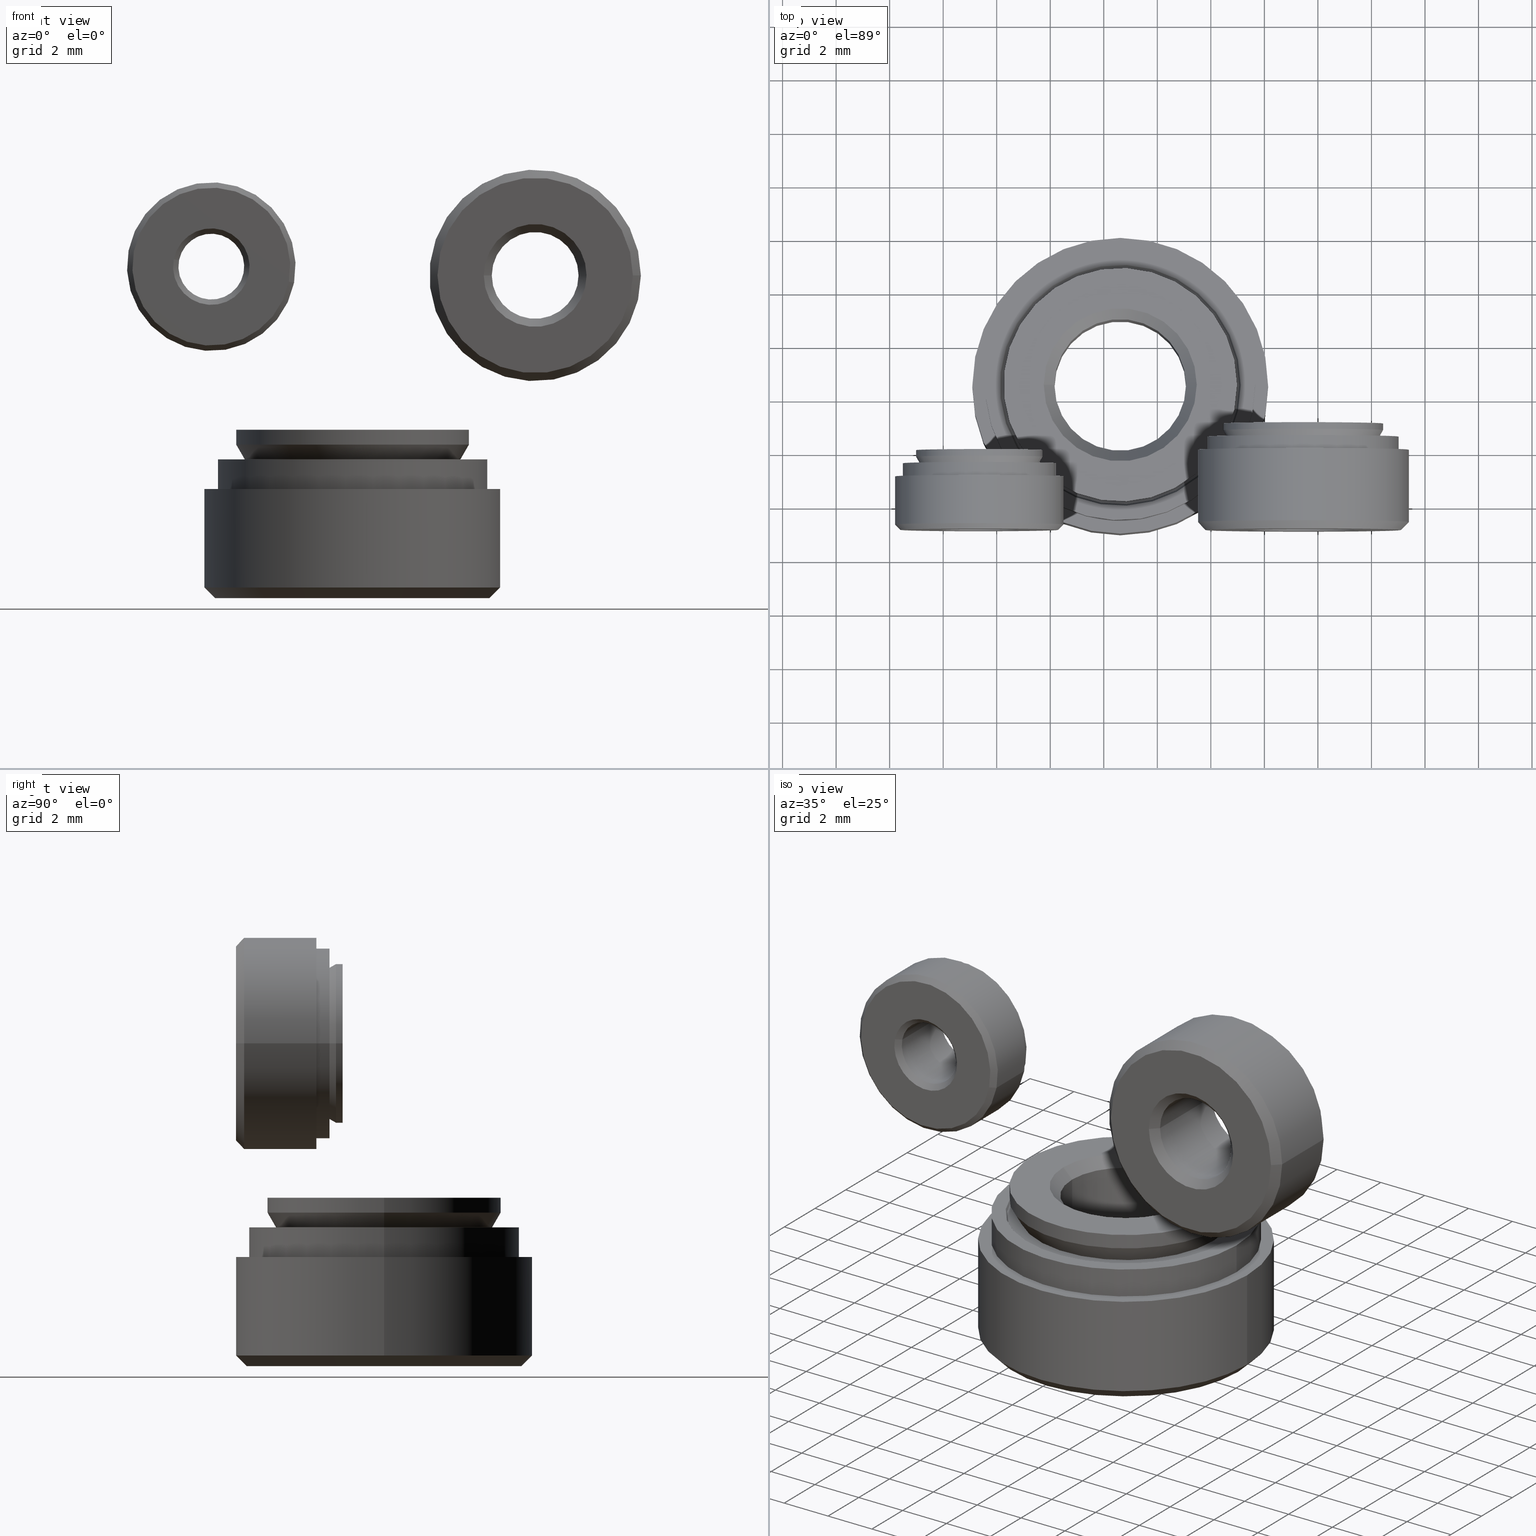
[diagram: canonical four-view strip — front | top / right | iso, engineering-drawing reading convention]
A machine part, canonical four-view strip (front | top / right | iso — engineering-drawing reading convention). The complete STEP part file that produces these views, byte-faithful:
ISO-10303-21;
HEADER;
/* Generated by software containing ST-Developer
 * from STEP Tools, Inc. (www.steptools.com) 
 */

FILE_DESCRIPTION(
/* description */ (''),
/* implementation_level */ '2;1');

FILE_NAME(
/* name */ '\\\\SYNOLOGYNAS\\web\\db2\\CCN_M\\\X2\B3C4BA74\X0\\\DR_CCN
_M.stp',
/* time_stamp */ '2023-05-31T11:38:22+09:00',
/* author */ ('user'),
/* organization */ (''),
/* preprocessor_version */ 'ST-DEVELOPER v15.6',
/* originating_system */ 'Autodesk Inventor 2015',
/* authorisation */ '');

FILE_SCHEMA (('AUTOMOTIVE_DESIGN { 1 0 10303 214 3 1 1 }'));
ENDSEC;

DATA;
#10=MECHANICAL_DESIGN_GEOMETRIC_PRESENTATION_REPRESENTATION('',(#40,#39,
#41,#42,#43,#37,#36,#35,#38),#924);
#11=ITEM_DEFINED_TRANSFORMATION($,$,#509,#597);
#12=ITEM_DEFINED_TRANSFORMATION($,$,#538,#598);
#13=ITEM_DEFINED_TRANSFORMATION($,$,#567,#599);
#14=(
REPRESENTATION_RELATIONSHIP($,$,#939,#942)
REPRESENTATION_RELATIONSHIP_WITH_TRANSFORMATION(#11)
SHAPE_REPRESENTATION_RELATIONSHIP()
);
#15=(
REPRESENTATION_RELATIONSHIP($,$,#940,#942)
REPRESENTATION_RELATIONSHIP_WITH_TRANSFORMATION(#12)
SHAPE_REPRESENTATION_RELATIONSHIP()
);
#16=(
REPRESENTATION_RELATIONSHIP($,$,#941,#942)
REPRESENTATION_RELATIONSHIP_WITH_TRANSFORMATION(#13)
SHAPE_REPRESENTATION_RELATIONSHIP()
);
#17=CONTEXT_DEPENDENT_SHAPE_REPRESENTATION(#14,#936);
#18=CONTEXT_DEPENDENT_SHAPE_REPRESENTATION(#15,#937);
#19=CONTEXT_DEPENDENT_SHAPE_REPRESENTATION(#16,#938);
#20=NEXT_ASSEMBLY_USAGE_OCCURRENCE('CCN-M6-2:1',$,$,#947,#944,$);
#21=NEXT_ASSEMBLY_USAGE_OCCURRENCE('CCN-M3-1:1',$,$,#947,#945,$);
#22=NEXT_ASSEMBLY_USAGE_OCCURRENCE('CCN-M4-1:1',$,$,#947,#946,$);
#23=DIMENSIONAL_EXPONENTS(0.,0.,0.,0.,0.,0.,0.);
#24=(
CONVERSION_BASED_UNIT('degree',#25)
NAMED_UNIT(#23)
PLANE_ANGLE_UNIT()
);
#25=PLANE_ANGLE_MEASURE_WITH_UNIT(PLANE_ANGLE_MEASURE(0.01745329252),#927);
#26=SHAPE_REPRESENTATION_RELATIONSHIP('SRR','None',#939,#29);
#27=SHAPE_REPRESENTATION_RELATIONSHIP('SRR','None',#940,#30);
#28=SHAPE_REPRESENTATION_RELATIONSHIP('SRR','None',#941,#31);
#29=ADVANCED_BREP_SHAPE_REPRESENTATION($,(#32),#920);
#30=ADVANCED_BREP_SHAPE_REPRESENTATION($,(#33),#921);
#31=ADVANCED_BREP_SHAPE_REPRESENTATION($,(#34),#922);
#32=MANIFOLD_SOLID_BREP('Solid1',#506);
#33=MANIFOLD_SOLID_BREP('Solid1',#507);
#34=MANIFOLD_SOLID_BREP('Solid1',#508);
#35=STYLED_ITEM('',(#965),#474);
#36=STYLED_ITEM('',(#965),#476);
#37=STYLED_ITEM('',(#964),#32);
#38=STYLED_ITEM('',(#967),#488);
#39=STYLED_ITEM('',(#967),#490);
#40=STYLED_ITEM('',(#966),#33);
#41=STYLED_ITEM('',(#969),#502);
#42=STYLED_ITEM('',(#969),#504);
#43=STYLED_ITEM('',(#968),#34);
#44=PLANE('',#515);
#45=PLANE('',#520);
#46=PLANE('',#529);
#47=PLANE('',#533);
#48=PLANE('',#537);
#49=PLANE('',#544);
#50=PLANE('',#549);
#51=PLANE('',#558);
#52=PLANE('',#562);
#53=PLANE('',#566);
#54=PLANE('',#573);
#55=PLANE('',#578);
#56=PLANE('',#587);
#57=PLANE('',#591);
#58=PLANE('',#595);
#59=CYLINDRICAL_SURFACE('',#513,2.4585);
#60=CYLINDRICAL_SURFACE('',#522,5.525);
#61=CYLINDRICAL_SURFACE('',#525,4.36);
#62=CYLINDRICAL_SURFACE('',#535,5.0425);
#63=CYLINDRICAL_SURFACE('',#542,1.2295);
#64=CYLINDRICAL_SURFACE('',#551,3.15);
#65=CYLINDRICAL_SURFACE('',#554,2.365);
#66=CYLINDRICAL_SURFACE('',#564,2.8575);
#67=CYLINDRICAL_SURFACE('',#571,1.621);
#68=CYLINDRICAL_SURFACE('',#580,3.95);
#69=CYLINDRICAL_SURFACE('',#583,2.985);
#70=CYLINDRICAL_SURFACE('',#593,3.5675);
#71=FACE_BOUND('',#156,.T.);
#72=FACE_BOUND('',#158,.T.);
#73=FACE_BOUND('',#160,.T.);
#74=FACE_BOUND('',#162,.T.);
#75=FACE_BOUND('',#164,.T.);
#76=FACE_BOUND('',#166,.T.);
#77=FACE_BOUND('',#168,.T.);
#78=FACE_BOUND('',#170,.T.);
#79=FACE_BOUND('',#172,.T.);
#80=FACE_BOUND('',#174,.T.);
#81=FACE_BOUND('',#176,.T.);
#82=FACE_BOUND('',#178,.T.);
#83=FACE_BOUND('',#180,.T.);
#84=FACE_BOUND('',#182,.T.);
#85=FACE_BOUND('',#184,.T.);
#86=FACE_BOUND('',#186,.T.);
#87=FACE_BOUND('',#188,.T.);
#88=FACE_BOUND('',#190,.T.);
#89=FACE_BOUND('',#192,.T.);
#90=FACE_BOUND('',#194,.T.);
#91=FACE_BOUND('',#196,.T.);
#92=FACE_BOUND('',#198,.T.);
#93=FACE_BOUND('',#200,.T.);
#94=FACE_BOUND('',#202,.T.);
#95=FACE_BOUND('',#204,.T.);
#96=FACE_BOUND('',#206,.T.);
#97=FACE_BOUND('',#208,.T.);
#98=FACE_BOUND('',#210,.T.);
#99=FACE_BOUND('',#212,.T.);
#100=FACE_BOUND('',#214,.T.);
#101=FACE_BOUND('',#216,.T.);
#102=FACE_BOUND('',#218,.T.);
#103=FACE_BOUND('',#220,.T.);
#104=FACE_BOUND('',#222,.T.);
#105=FACE_BOUND('',#224,.T.);
#106=FACE_BOUND('',#226,.T.);
#107=FACE_BOUND('',#228,.T.);
#108=FACE_BOUND('',#230,.T.);
#109=FACE_BOUND('',#232,.T.);
#110=FACE_BOUND('',#234,.T.);
#111=FACE_BOUND('',#236,.T.);
#112=FACE_BOUND('',#238,.T.);
#113=FACE_OUTER_BOUND('',#155,.T.);
#114=FACE_OUTER_BOUND('',#157,.T.);
#115=FACE_OUTER_BOUND('',#159,.T.);
#116=FACE_OUTER_BOUND('',#161,.T.);
#117=FACE_OUTER_BOUND('',#163,.T.);
#118=FACE_OUTER_BOUND('',#165,.T.);
#119=FACE_OUTER_BOUND('',#167,.T.);
#120=FACE_OUTER_BOUND('',#169,.T.);
#121=FACE_OUTER_BOUND('',#171,.T.);
#122=FACE_OUTER_BOUND('',#173,.T.);
#123=FACE_OUTER_BOUND('',#175,.T.);
#124=FACE_OUTER_BOUND('',#177,.T.);
#125=FACE_OUTER_BOUND('',#179,.T.);
#126=FACE_OUTER_BOUND('',#181,.T.);
#127=FACE_OUTER_BOUND('',#183,.T.);
#128=FACE_OUTER_BOUND('',#185,.T.);
#129=FACE_OUTER_BOUND('',#187,.T.);
#130=FACE_OUTER_BOUND('',#189,.T.);
#131=FACE_OUTER_BOUND('',#191,.T.);
#132=FACE_OUTER_BOUND('',#193,.T.);
#133=FACE_OUTER_BOUND('',#195,.T.);
#134=FACE_OUTER_BOUND('',#197,.T.);
#135=FACE_OUTER_BOUND('',#199,.T.);
#136=FACE_OUTER_BOUND('',#201,.T.);
#137=FACE_OUTER_BOUND('',#203,.T.);
#138=FACE_OUTER_BOUND('',#205,.T.);
#139=FACE_OUTER_BOUND('',#207,.T.);
#140=FACE_OUTER_BOUND('',#209,.T.);
#141=FACE_OUTER_BOUND('',#211,.T.);
#142=FACE_OUTER_BOUND('',#213,.T.);
#143=FACE_OUTER_BOUND('',#215,.T.);
#144=FACE_OUTER_BOUND('',#217,.T.);
#145=FACE_OUTER_BOUND('',#219,.T.);
#146=FACE_OUTER_BOUND('',#221,.T.);
#147=FACE_OUTER_BOUND('',#223,.T.);
#148=FACE_OUTER_BOUND('',#225,.T.);
#149=FACE_OUTER_BOUND('',#227,.T.);
#150=FACE_OUTER_BOUND('',#229,.T.);
#151=FACE_OUTER_BOUND('',#231,.T.);
#152=FACE_OUTER_BOUND('',#233,.T.);
#153=FACE_OUTER_BOUND('',#235,.T.);
#154=FACE_OUTER_BOUND('',#237,.T.);
#155=EDGE_LOOP('',(#365));
#156=EDGE_LOOP('',(#366));
#157=EDGE_LOOP('',(#367));
#158=EDGE_LOOP('',(#368));
#159=EDGE_LOOP('',(#369));
#160=EDGE_LOOP('',(#370));
#161=EDGE_LOOP('',(#371));
#162=EDGE_LOOP('',(#372));
#163=EDGE_LOOP('',(#373));
#164=EDGE_LOOP('',(#374));
#165=EDGE_LOOP('',(#375));
#166=EDGE_LOOP('',(#376));
#167=EDGE_LOOP('',(#377));
#168=EDGE_LOOP('',(#378));
#169=EDGE_LOOP('',(#379));
#170=EDGE_LOOP('',(#380));
#171=EDGE_LOOP('',(#381));
#172=EDGE_LOOP('',(#382));
#173=EDGE_LOOP('',(#383));
#174=EDGE_LOOP('',(#384));
#175=EDGE_LOOP('',(#385));
#176=EDGE_LOOP('',(#386));
#177=EDGE_LOOP('',(#387));
#178=EDGE_LOOP('',(#388));
#179=EDGE_LOOP('',(#389));
#180=EDGE_LOOP('',(#390));
#181=EDGE_LOOP('',(#391));
#182=EDGE_LOOP('',(#392));
#183=EDGE_LOOP('',(#393));
#184=EDGE_LOOP('',(#394));
#185=EDGE_LOOP('',(#395));
#186=EDGE_LOOP('',(#396));
#187=EDGE_LOOP('',(#397));
#188=EDGE_LOOP('',(#398));
#189=EDGE_LOOP('',(#399));
#190=EDGE_LOOP('',(#400));
#191=EDGE_LOOP('',(#401));
#192=EDGE_LOOP('',(#402));
#193=EDGE_LOOP('',(#403));
#194=EDGE_LOOP('',(#404));
#195=EDGE_LOOP('',(#405));
#196=EDGE_LOOP('',(#406));
#197=EDGE_LOOP('',(#407));
#198=EDGE_LOOP('',(#408));
#199=EDGE_LOOP('',(#409));
#200=EDGE_LOOP('',(#410));
#201=EDGE_LOOP('',(#411));
#202=EDGE_LOOP('',(#412));
#203=EDGE_LOOP('',(#413));
#204=EDGE_LOOP('',(#414));
#205=EDGE_LOOP('',(#415));
#206=EDGE_LOOP('',(#416));
#207=EDGE_LOOP('',(#417));
#208=EDGE_LOOP('',(#418));
#209=EDGE_LOOP('',(#419));
#210=EDGE_LOOP('',(#420));
#211=EDGE_LOOP('',(#421));
#212=EDGE_LOOP('',(#422));
#213=EDGE_LOOP('',(#423));
#214=EDGE_LOOP('',(#424));
#215=EDGE_LOOP('',(#425));
#216=EDGE_LOOP('',(#426));
#217=EDGE_LOOP('',(#427));
#218=EDGE_LOOP('',(#428));
#219=EDGE_LOOP('',(#429));
#220=EDGE_LOOP('',(#430));
#221=EDGE_LOOP('',(#431));
#222=EDGE_LOOP('',(#432));
#223=EDGE_LOOP('',(#433));
#224=EDGE_LOOP('',(#434));
#225=EDGE_LOOP('',(#435));
#226=EDGE_LOOP('',(#436));
#227=EDGE_LOOP('',(#437));
#228=EDGE_LOOP('',(#438));
#229=EDGE_LOOP('',(#439));
#230=EDGE_LOOP('',(#440));
#231=EDGE_LOOP('',(#441));
#232=EDGE_LOOP('',(#442));
#233=EDGE_LOOP('',(#443));
#234=EDGE_LOOP('',(#444));
#235=EDGE_LOOP('',(#445));
#236=EDGE_LOOP('',(#446));
#237=EDGE_LOOP('',(#447));
#238=EDGE_LOOP('',(#448));
#239=CIRCLE('',#511,2.4585);
#240=CIRCLE('',#512,2.8585);
#241=CIRCLE('',#514,2.4585);
#242=CIRCLE('',#516,4.36);
#243=CIRCLE('',#518,5.525);
#244=CIRCLE('',#519,5.125);
#245=CIRCLE('',#521,2.8585);
#246=CIRCLE('',#523,5.525);
#247=CIRCLE('',#526,4.36);
#248=CIRCLE('',#528,3.98327894935377);
#249=CIRCLE('',#530,4.44515916470547);
#250=CIRCLE('',#532,4.50289419162443);
#251=CIRCLE('',#534,5.0425);
#252=CIRCLE('',#536,5.0425);
#253=CIRCLE('',#540,1.2295);
#254=CIRCLE('',#541,1.4295);
#255=CIRCLE('',#543,1.2295);
#256=CIRCLE('',#545,2.365);
#257=CIRCLE('',#547,3.15);
#258=CIRCLE('',#548,2.95);
#259=CIRCLE('',#550,1.4295);
#260=CIRCLE('',#552,3.15);
#261=CIRCLE('',#555,2.365);
#262=CIRCLE('',#557,2.16581415712958);
#263=CIRCLE('',#559,2.62769437248128);
#264=CIRCLE('',#561,2.68542939940024);
#265=CIRCLE('',#563,2.8575);
#266=CIRCLE('',#565,2.8575);
#267=CIRCLE('',#569,1.621);
#268=CIRCLE('',#570,1.921);
#269=CIRCLE('',#572,1.621);
#270=CIRCLE('',#574,2.985);
#271=CIRCLE('',#576,3.95);
#272=CIRCLE('',#577,3.65);
#273=CIRCLE('',#579,1.921);
#274=CIRCLE('',#581,3.95);
#275=CIRCLE('',#584,2.985);
#276=CIRCLE('',#586,2.78581415712958);
#277=CIRCLE('',#588,3.24769437248128);
#278=CIRCLE('',#590,3.30542939940024);
#279=CIRCLE('',#592,3.5675);
#280=CIRCLE('',#594,3.5675);
#281=VERTEX_POINT('',#784);
#282=VERTEX_POINT('',#786);
#283=VERTEX_POINT('',#789);
#284=VERTEX_POINT('',#792);
#285=VERTEX_POINT('',#795);
#286=VERTEX_POINT('',#797);
#287=VERTEX_POINT('',#800);
#288=VERTEX_POINT('',#803);
#289=VERTEX_POINT('',#807);
#290=VERTEX_POINT('',#810);
#291=VERTEX_POINT('',#813);
#292=VERTEX_POINT('',#816);
#293=VERTEX_POINT('',#819);
#294=VERTEX_POINT('',#822);
#295=VERTEX_POINT('',#827);
#296=VERTEX_POINT('',#829);
#297=VERTEX_POINT('',#832);
#298=VERTEX_POINT('',#835);
#299=VERTEX_POINT('',#838);
#300=VERTEX_POINT('',#840);
#301=VERTEX_POINT('',#843);
#302=VERTEX_POINT('',#846);
#303=VERTEX_POINT('',#850);
#304=VERTEX_POINT('',#853);
#305=VERTEX_POINT('',#856);
#306=VERTEX_POINT('',#859);
#307=VERTEX_POINT('',#862);
#308=VERTEX_POINT('',#865);
#309=VERTEX_POINT('',#870);
#310=VERTEX_POINT('',#872);
#311=VERTEX_POINT('',#875);
#312=VERTEX_POINT('',#878);
#313=VERTEX_POINT('',#881);
#314=VERTEX_POINT('',#883);
#315=VERTEX_POINT('',#886);
#316=VERTEX_POINT('',#889);
#317=VERTEX_POINT('',#893);
#318=VERTEX_POINT('',#896);
#319=VERTEX_POINT('',#899);
#320=VERTEX_POINT('',#902);
#321=VERTEX_POINT('',#905);
#322=VERTEX_POINT('',#908);
#323=EDGE_CURVE('',#281,#281,#239,.T.);
#324=EDGE_CURVE('',#282,#282,#240,.T.);
#325=EDGE_CURVE('',#283,#283,#241,.T.);
#326=EDGE_CURVE('',#284,#284,#242,.T.);
#327=EDGE_CURVE('',#285,#285,#243,.T.);
#328=EDGE_CURVE('',#286,#286,#244,.T.);
#329=EDGE_CURVE('',#287,#287,#245,.T.);
#330=EDGE_CURVE('',#288,#288,#246,.T.);
#331=EDGE_CURVE('',#289,#289,#247,.T.);
#332=EDGE_CURVE('',#290,#290,#248,.T.);
#333=EDGE_CURVE('',#291,#291,#249,.T.);
#334=EDGE_CURVE('',#292,#292,#250,.T.);
#335=EDGE_CURVE('',#293,#293,#251,.T.);
#336=EDGE_CURVE('',#294,#294,#252,.T.);
#337=EDGE_CURVE('',#295,#295,#253,.T.);
#338=EDGE_CURVE('',#296,#296,#254,.T.);
#339=EDGE_CURVE('',#297,#297,#255,.T.);
#340=EDGE_CURVE('',#298,#298,#256,.T.);
#341=EDGE_CURVE('',#299,#299,#257,.T.);
#342=EDGE_CURVE('',#300,#300,#258,.T.);
#343=EDGE_CURVE('',#301,#301,#259,.T.);
#344=EDGE_CURVE('',#302,#302,#260,.T.);
#345=EDGE_CURVE('',#303,#303,#261,.T.);
#346=EDGE_CURVE('',#304,#304,#262,.T.);
#347=EDGE_CURVE('',#305,#305,#263,.T.);
#348=EDGE_CURVE('',#306,#306,#264,.T.);
#349=EDGE_CURVE('',#307,#307,#265,.T.);
#350=EDGE_CURVE('',#308,#308,#266,.T.);
#351=EDGE_CURVE('',#309,#309,#267,.T.);
#352=EDGE_CURVE('',#310,#310,#268,.T.);
#353=EDGE_CURVE('',#311,#311,#269,.T.);
#354=EDGE_CURVE('',#312,#312,#270,.T.);
#355=EDGE_CURVE('',#313,#313,#271,.T.);
#356=EDGE_CURVE('',#314,#314,#272,.T.);
#357=EDGE_CURVE('',#315,#315,#273,.T.);
#358=EDGE_CURVE('',#316,#316,#274,.T.);
#359=EDGE_CURVE('',#317,#317,#275,.T.);
#360=EDGE_CURVE('',#318,#318,#276,.T.);
#361=EDGE_CURVE('',#319,#319,#277,.T.);
#362=EDGE_CURVE('',#320,#320,#278,.T.);
#363=EDGE_CURVE('',#321,#321,#279,.T.);
#364=EDGE_CURVE('',#322,#322,#280,.T.);
#365=ORIENTED_EDGE('',*,*,#323,.T.);
#366=ORIENTED_EDGE('',*,*,#324,.T.);
#367=ORIENTED_EDGE('',*,*,#325,.F.);
#368=ORIENTED_EDGE('',*,*,#323,.F.);
#369=ORIENTED_EDGE('',*,*,#326,.F.);
#370=ORIENTED_EDGE('',*,*,#324,.F.);
#371=ORIENTED_EDGE('',*,*,#327,.T.);
#372=ORIENTED_EDGE('',*,*,#328,.T.);
#373=ORIENTED_EDGE('',*,*,#328,.F.);
#374=ORIENTED_EDGE('',*,*,#329,.F.);
#375=ORIENTED_EDGE('',*,*,#330,.T.);
#376=ORIENTED_EDGE('',*,*,#327,.F.);
#377=ORIENTED_EDGE('',*,*,#325,.T.);
#378=ORIENTED_EDGE('',*,*,#329,.T.);
#379=ORIENTED_EDGE('',*,*,#326,.T.);
#380=ORIENTED_EDGE('',*,*,#331,.F.);
#381=ORIENTED_EDGE('',*,*,#331,.T.);
#382=ORIENTED_EDGE('',*,*,#332,.F.);
#383=ORIENTED_EDGE('',*,*,#333,.F.);
#384=ORIENTED_EDGE('',*,*,#332,.T.);
#385=ORIENTED_EDGE('',*,*,#334,.F.);
#386=ORIENTED_EDGE('',*,*,#333,.T.);
#387=ORIENTED_EDGE('',*,*,#335,.F.);
#388=ORIENTED_EDGE('',*,*,#334,.T.);
#389=ORIENTED_EDGE('',*,*,#335,.T.);
#390=ORIENTED_EDGE('',*,*,#336,.F.);
#391=ORIENTED_EDGE('',*,*,#330,.F.);
#392=ORIENTED_EDGE('',*,*,#336,.T.);
#393=ORIENTED_EDGE('',*,*,#337,.T.);
#394=ORIENTED_EDGE('',*,*,#338,.T.);
#395=ORIENTED_EDGE('',*,*,#339,.F.);
#396=ORIENTED_EDGE('',*,*,#337,.F.);
#397=ORIENTED_EDGE('',*,*,#340,.F.);
#398=ORIENTED_EDGE('',*,*,#338,.F.);
#399=ORIENTED_EDGE('',*,*,#341,.T.);
#400=ORIENTED_EDGE('',*,*,#342,.T.);
#401=ORIENTED_EDGE('',*,*,#342,.F.);
#402=ORIENTED_EDGE('',*,*,#343,.F.);
#403=ORIENTED_EDGE('',*,*,#344,.T.);
#404=ORIENTED_EDGE('',*,*,#341,.F.);
#405=ORIENTED_EDGE('',*,*,#339,.T.);
#406=ORIENTED_EDGE('',*,*,#343,.T.);
#407=ORIENTED_EDGE('',*,*,#340,.T.);
#408=ORIENTED_EDGE('',*,*,#345,.F.);
#409=ORIENTED_EDGE('',*,*,#345,.T.);
#410=ORIENTED_EDGE('',*,*,#346,.F.);
#411=ORIENTED_EDGE('',*,*,#347,.F.);
#412=ORIENTED_EDGE('',*,*,#346,.T.);
#413=ORIENTED_EDGE('',*,*,#348,.F.);
#414=ORIENTED_EDGE('',*,*,#347,.T.);
#415=ORIENTED_EDGE('',*,*,#349,.F.);
#416=ORIENTED_EDGE('',*,*,#348,.T.);
#417=ORIENTED_EDGE('',*,*,#349,.T.);
#418=ORIENTED_EDGE('',*,*,#350,.F.);
#419=ORIENTED_EDGE('',*,*,#344,.F.);
#420=ORIENTED_EDGE('',*,*,#350,.T.);
#421=ORIENTED_EDGE('',*,*,#351,.T.);
#422=ORIENTED_EDGE('',*,*,#352,.T.);
#423=ORIENTED_EDGE('',*,*,#353,.F.);
#424=ORIENTED_EDGE('',*,*,#351,.F.);
#425=ORIENTED_EDGE('',*,*,#354,.F.);
#426=ORIENTED_EDGE('',*,*,#352,.F.);
#427=ORIENTED_EDGE('',*,*,#355,.T.);
#428=ORIENTED_EDGE('',*,*,#356,.T.);
#429=ORIENTED_EDGE('',*,*,#356,.F.);
#430=ORIENTED_EDGE('',*,*,#357,.F.);
#431=ORIENTED_EDGE('',*,*,#358,.T.);
#432=ORIENTED_EDGE('',*,*,#355,.F.);
#433=ORIENTED_EDGE('',*,*,#353,.T.);
#434=ORIENTED_EDGE('',*,*,#357,.T.);
#435=ORIENTED_EDGE('',*,*,#354,.T.);
#436=ORIENTED_EDGE('',*,*,#359,.F.);
#437=ORIENTED_EDGE('',*,*,#359,.T.);
#438=ORIENTED_EDGE('',*,*,#360,.F.);
#439=ORIENTED_EDGE('',*,*,#361,.F.);
#440=ORIENTED_EDGE('',*,*,#360,.T.);
#441=ORIENTED_EDGE('',*,*,#362,.F.);
#442=ORIENTED_EDGE('',*,*,#361,.T.);
#443=ORIENTED_EDGE('',*,*,#363,.F.);
#444=ORIENTED_EDGE('',*,*,#362,.T.);
#445=ORIENTED_EDGE('',*,*,#363,.T.);
#446=ORIENTED_EDGE('',*,*,#364,.F.);
#447=ORIENTED_EDGE('',*,*,#358,.F.);
#448=ORIENTED_EDGE('',*,*,#364,.T.);
#449=CONICAL_SURFACE('',#510,2.6585,0.785398163397448);
#450=CONICAL_SURFACE('',#517,5.325,0.785398163397447);
#451=CONICAL_SURFACE('',#524,2.6585,0.785398163397448);
#452=CONICAL_SURFACE('',#527,4.17163947467689,0.523598775598298);
#453=CONICAL_SURFACE('',#531,4.47402667816495,0.523598775598294);
#454=CONICAL_SURFACE('',#539,1.3295,0.785398163397448);
#455=CONICAL_SURFACE('',#546,3.05,0.785398163397447);
#456=CONICAL_SURFACE('',#553,1.3295,0.785398163397448);
#457=CONICAL_SURFACE('',#556,2.26540707856479,0.523598775598298);
#458=CONICAL_SURFACE('',#560,2.65656188594076,0.523598775598299);
#459=CONICAL_SURFACE('',#568,1.771,0.785398163397448);
#460=CONICAL_SURFACE('',#575,3.8,0.785398163397447);
#461=CONICAL_SURFACE('',#582,1.771,0.785398163397448);
#462=CONICAL_SURFACE('',#585,2.88540707856479,0.523598775598298);
#463=CONICAL_SURFACE('',#589,3.27656188594076,0.5235987755983);
#464=ADVANCED_FACE('',(#113,#71),#449,.F.);
#465=ADVANCED_FACE('',(#114,#72),#59,.F.);
#466=ADVANCED_FACE('',(#115,#73),#44,.T.);
#467=ADVANCED_FACE('',(#116,#74),#450,.T.);
#468=ADVANCED_FACE('',(#117,#75),#45,.T.);
#469=ADVANCED_FACE('',(#118,#76),#60,.T.);
#470=ADVANCED_FACE('',(#119,#77),#451,.F.);
#471=ADVANCED_FACE('',(#120,#78),#61,.T.);
#472=ADVANCED_FACE('',(#121,#79),#452,.T.);
#473=ADVANCED_FACE('',(#122,#80),#46,.T.);
#474=ADVANCED_FACE('',(#123,#81),#453,.F.);
#475=ADVANCED_FACE('',(#124,#82),#47,.T.);
#476=ADVANCED_FACE('',(#125,#83),#62,.T.);
#477=ADVANCED_FACE('',(#126,#84),#48,.T.);
#478=ADVANCED_FACE('',(#127,#85),#454,.F.);
#479=ADVANCED_FACE('',(#128,#86),#63,.F.);
#480=ADVANCED_FACE('',(#129,#87),#49,.T.);
#481=ADVANCED_FACE('',(#130,#88),#455,.T.);
#482=ADVANCED_FACE('',(#131,#89),#50,.T.);
#483=ADVANCED_FACE('',(#132,#90),#64,.T.);
#484=ADVANCED_FACE('',(#133,#91),#456,.F.);
#485=ADVANCED_FACE('',(#134,#92),#65,.T.);
#486=ADVANCED_FACE('',(#135,#93),#457,.T.);
#487=ADVANCED_FACE('',(#136,#94),#51,.T.);
#488=ADVANCED_FACE('',(#137,#95),#458,.F.);
#489=ADVANCED_FACE('',(#138,#96),#52,.T.);
#490=ADVANCED_FACE('',(#139,#97),#66,.T.);
#491=ADVANCED_FACE('',(#140,#98),#53,.T.);
#492=ADVANCED_FACE('',(#141,#99),#459,.F.);
#493=ADVANCED_FACE('',(#142,#100),#67,.F.);
#494=ADVANCED_FACE('',(#143,#101),#54,.T.);
#495=ADVANCED_FACE('',(#144,#102),#460,.T.);
#496=ADVANCED_FACE('',(#145,#103),#55,.T.);
#497=ADVANCED_FACE('',(#146,#104),#68,.T.);
#498=ADVANCED_FACE('',(#147,#105),#461,.F.);
#499=ADVANCED_FACE('',(#148,#106),#69,.T.);
#500=ADVANCED_FACE('',(#149,#107),#462,.T.);
#501=ADVANCED_FACE('',(#150,#108),#56,.T.);
#502=ADVANCED_FACE('',(#151,#109),#463,.F.);
#503=ADVANCED_FACE('',(#152,#110),#57,.T.);
#504=ADVANCED_FACE('',(#153,#111),#70,.T.);
#505=ADVANCED_FACE('',(#154,#112),#58,.T.);
#506=CLOSED_SHELL('',(#464,#465,#466,#467,#468,#469,#470,#471,#472,#473,
#474,#475,#476,#477));
#507=CLOSED_SHELL('',(#478,#479,#480,#481,#482,#483,#484,#485,#486,#487,
#488,#489,#490,#491));
#508=CLOSED_SHELL('',(#492,#493,#494,#495,#496,#497,#498,#499,#500,#501,
#502,#503,#504,#505));
#509=AXIS2_PLACEMENT_3D('placement',#782,#600,#601);
#510=AXIS2_PLACEMENT_3D('',#783,#602,#603);
#511=AXIS2_PLACEMENT_3D('',#785,#604,#605);
#512=AXIS2_PLACEMENT_3D('',#787,#606,#607);
#513=AXIS2_PLACEMENT_3D('',#788,#608,#609);
#514=AXIS2_PLACEMENT_3D('',#790,#610,#611);
#515=AXIS2_PLACEMENT_3D('',#791,#612,#613);
#516=AXIS2_PLACEMENT_3D('',#793,#614,#615);
#517=AXIS2_PLACEMENT_3D('',#794,#616,#617);
#518=AXIS2_PLACEMENT_3D('',#796,#618,#619);
#519=AXIS2_PLACEMENT_3D('',#798,#620,#621);
#520=AXIS2_PLACEMENT_3D('',#799,#622,#623);
#521=AXIS2_PLACEMENT_3D('',#801,#624,#625);
#522=AXIS2_PLACEMENT_3D('',#802,#626,#627);
#523=AXIS2_PLACEMENT_3D('',#804,#628,#629);
#524=AXIS2_PLACEMENT_3D('',#805,#630,#631);
#525=AXIS2_PLACEMENT_3D('',#806,#632,#633);
#526=AXIS2_PLACEMENT_3D('',#808,#634,#635);
#527=AXIS2_PLACEMENT_3D('',#809,#636,#637);
#528=AXIS2_PLACEMENT_3D('',#811,#638,#639);
#529=AXIS2_PLACEMENT_3D('',#812,#640,#641);
#530=AXIS2_PLACEMENT_3D('',#814,#642,#643);
#531=AXIS2_PLACEMENT_3D('',#815,#644,#645);
#532=AXIS2_PLACEMENT_3D('',#817,#646,#647);
#533=AXIS2_PLACEMENT_3D('',#818,#648,#649);
#534=AXIS2_PLACEMENT_3D('',#820,#650,#651);
#535=AXIS2_PLACEMENT_3D('',#821,#652,#653);
#536=AXIS2_PLACEMENT_3D('',#823,#654,#655);
#537=AXIS2_PLACEMENT_3D('',#824,#656,#657);
#538=AXIS2_PLACEMENT_3D('placement',#825,#658,#659);
#539=AXIS2_PLACEMENT_3D('',#826,#660,#661);
#540=AXIS2_PLACEMENT_3D('',#828,#662,#663);
#541=AXIS2_PLACEMENT_3D('',#830,#664,#665);
#542=AXIS2_PLACEMENT_3D('',#831,#666,#667);
#543=AXIS2_PLACEMENT_3D('',#833,#668,#669);
#544=AXIS2_PLACEMENT_3D('',#834,#670,#671);
#545=AXIS2_PLACEMENT_3D('',#836,#672,#673);
#546=AXIS2_PLACEMENT_3D('',#837,#674,#675);
#547=AXIS2_PLACEMENT_3D('',#839,#676,#677);
#548=AXIS2_PLACEMENT_3D('',#841,#678,#679);
#549=AXIS2_PLACEMENT_3D('',#842,#680,#681);
#550=AXIS2_PLACEMENT_3D('',#844,#682,#683);
#551=AXIS2_PLACEMENT_3D('',#845,#684,#685);
#552=AXIS2_PLACEMENT_3D('',#847,#686,#687);
#553=AXIS2_PLACEMENT_3D('',#848,#688,#689);
#554=AXIS2_PLACEMENT_3D('',#849,#690,#691);
#555=AXIS2_PLACEMENT_3D('',#851,#692,#693);
#556=AXIS2_PLACEMENT_3D('',#852,#694,#695);
#557=AXIS2_PLACEMENT_3D('',#854,#696,#697);
#558=AXIS2_PLACEMENT_3D('',#855,#698,#699);
#559=AXIS2_PLACEMENT_3D('',#857,#700,#701);
#560=AXIS2_PLACEMENT_3D('',#858,#702,#703);
#561=AXIS2_PLACEMENT_3D('',#860,#704,#705);
#562=AXIS2_PLACEMENT_3D('',#861,#706,#707);
#563=AXIS2_PLACEMENT_3D('',#863,#708,#709);
#564=AXIS2_PLACEMENT_3D('',#864,#710,#711);
#565=AXIS2_PLACEMENT_3D('',#866,#712,#713);
#566=AXIS2_PLACEMENT_3D('',#867,#714,#715);
#567=AXIS2_PLACEMENT_3D('placement',#868,#716,#717);
#568=AXIS2_PLACEMENT_3D('',#869,#718,#719);
#569=AXIS2_PLACEMENT_3D('',#871,#720,#721);
#570=AXIS2_PLACEMENT_3D('',#873,#722,#723);
#571=AXIS2_PLACEMENT_3D('',#874,#724,#725);
#572=AXIS2_PLACEMENT_3D('',#876,#726,#727);
#573=AXIS2_PLACEMENT_3D('',#877,#728,#729);
#574=AXIS2_PLACEMENT_3D('',#879,#730,#731);
#575=AXIS2_PLACEMENT_3D('',#880,#732,#733);
#576=AXIS2_PLACEMENT_3D('',#882,#734,#735);
#577=AXIS2_PLACEMENT_3D('',#884,#736,#737);
#578=AXIS2_PLACEMENT_3D('',#885,#738,#739);
#579=AXIS2_PLACEMENT_3D('',#887,#740,#741);
#580=AXIS2_PLACEMENT_3D('',#888,#742,#743);
#581=AXIS2_PLACEMENT_3D('',#890,#744,#745);
#582=AXIS2_PLACEMENT_3D('',#891,#746,#747);
#583=AXIS2_PLACEMENT_3D('',#892,#748,#749);
#584=AXIS2_PLACEMENT_3D('',#894,#750,#751);
#585=AXIS2_PLACEMENT_3D('',#895,#752,#753);
#586=AXIS2_PLACEMENT_3D('',#897,#754,#755);
#587=AXIS2_PLACEMENT_3D('',#898,#756,#757);
#588=AXIS2_PLACEMENT_3D('',#900,#758,#759);
#589=AXIS2_PLACEMENT_3D('',#901,#760,#761);
#590=AXIS2_PLACEMENT_3D('',#903,#762,#763);
#591=AXIS2_PLACEMENT_3D('',#904,#764,#765);
#592=AXIS2_PLACEMENT_3D('',#906,#766,#767);
#593=AXIS2_PLACEMENT_3D('',#907,#768,#769);
#594=AXIS2_PLACEMENT_3D('',#909,#770,#771);
#595=AXIS2_PLACEMENT_3D('',#910,#772,#773);
#596=AXIS2_PLACEMENT_3D('placement',#911,#774,#775);
#597=AXIS2_PLACEMENT_3D('',#912,#776,#777);
#598=AXIS2_PLACEMENT_3D('',#913,#778,#779);
#599=AXIS2_PLACEMENT_3D('',#914,#780,#781);
#600=DIRECTION('axis',(0.,0.,1.));
#601=DIRECTION('refdir',(1.,0.,0.));
#602=DIRECTION('center_axis',(0.,0.,1.));
#603=DIRECTION('ref_axis',(-1.,0.,0.));
#604=DIRECTION('center_axis',(0.,0.,-1.));
#605=DIRECTION('ref_axis',(-1.,0.,0.));
#606=DIRECTION('center_axis',(0.,0.,1.));
#607=DIRECTION('ref_axis',(-1.,0.,0.));
#608=DIRECTION('center_axis',(0.,0.,1.));
#609=DIRECTION('ref_axis',(1.,0.,0.));
#610=DIRECTION('center_axis',(0.,0.,1.));
#611=DIRECTION('ref_axis',(1.,0.,0.));
#612=DIRECTION('center_axis',(0.,0.,1.));
#613=DIRECTION('ref_axis',(1.,0.,0.));
#614=DIRECTION('center_axis',(0.,0.,-1.));
#615=DIRECTION('ref_axis',(-1.,0.,0.));
#616=DIRECTION('center_axis',(0.,0.,1.));
#617=DIRECTION('ref_axis',(1.,0.,0.));
#618=DIRECTION('center_axis',(0.,0.,-1.));
#619=DIRECTION('ref_axis',(1.,0.,0.));
#620=DIRECTION('center_axis',(0.,0.,1.));
#621=DIRECTION('ref_axis',(1.,0.,0.));
#622=DIRECTION('center_axis',(0.,0.,-1.));
#623=DIRECTION('ref_axis',(-1.,0.,0.));
#624=DIRECTION('center_axis',(0.,0.,-1.));
#625=DIRECTION('ref_axis',(1.,0.,0.));
#626=DIRECTION('center_axis',(0.,0.,-1.));
#627=DIRECTION('ref_axis',(-1.,0.,0.));
#628=DIRECTION('center_axis',(0.,0.,-1.));
#629=DIRECTION('ref_axis',(-1.,0.,0.));
#630=DIRECTION('center_axis',(0.,0.,-1.));
#631=DIRECTION('ref_axis',(1.,0.,0.));
#632=DIRECTION('center_axis',(0.,0.,-1.));
#633=DIRECTION('ref_axis',(-1.,0.,0.));
#634=DIRECTION('center_axis',(0.,0.,-1.));
#635=DIRECTION('ref_axis',(-1.,0.,0.));
#636=DIRECTION('center_axis',(0.,0.,1.));
#637=DIRECTION('ref_axis',(-1.,0.,0.));
#638=DIRECTION('center_axis',(0.,0.,-1.));
#639=DIRECTION('ref_axis',(-1.,0.,0.));
#640=DIRECTION('center_axis',(0.,0.,1.));
#641=DIRECTION('ref_axis',(1.,0.,0.));
#642=DIRECTION('center_axis',(0.,0.,-1.));
#643=DIRECTION('ref_axis',(-1.,0.,0.));
#644=DIRECTION('center_axis',(0.,0.,1.));
#645=DIRECTION('ref_axis',(-1.,0.,0.));
#646=DIRECTION('center_axis',(0.,0.,-1.));
#647=DIRECTION('ref_axis',(-1.,0.,0.));
#648=DIRECTION('center_axis',(0.,0.,1.));
#649=DIRECTION('ref_axis',(1.,0.,0.));
#650=DIRECTION('center_axis',(0.,0.,-1.));
#651=DIRECTION('ref_axis',(-1.,0.,0.));
#652=DIRECTION('center_axis',(0.,0.,-1.));
#653=DIRECTION('ref_axis',(-1.,0.,0.));
#654=DIRECTION('center_axis',(0.,0.,-1.));
#655=DIRECTION('ref_axis',(-1.,0.,0.));
#656=DIRECTION('center_axis',(0.,0.,1.));
#657=DIRECTION('ref_axis',(1.,0.,0.));
#658=DIRECTION('axis',(0.,0.,1.));
#659=DIRECTION('refdir',(1.,0.,0.));
#660=DIRECTION('center_axis',(0.,0.,1.));
#661=DIRECTION('ref_axis',(-1.,0.,0.));
#662=DIRECTION('center_axis',(0.,0.,-1.));
#663=DIRECTION('ref_axis',(-1.,0.,0.));
#664=DIRECTION('center_axis',(0.,0.,1.));
#665=DIRECTION('ref_axis',(-1.,0.,0.));
#666=DIRECTION('center_axis',(0.,0.,1.));
#667=DIRECTION('ref_axis',(1.,0.,0.));
#668=DIRECTION('center_axis',(0.,0.,1.));
#669=DIRECTION('ref_axis',(1.,0.,0.));
#670=DIRECTION('center_axis',(0.,0.,1.));
#671=DIRECTION('ref_axis',(1.,0.,0.));
#672=DIRECTION('center_axis',(0.,0.,-1.));
#673=DIRECTION('ref_axis',(-1.,0.,0.));
#674=DIRECTION('center_axis',(0.,0.,1.));
#675=DIRECTION('ref_axis',(1.,0.,0.));
#676=DIRECTION('center_axis',(0.,0.,-1.));
#677=DIRECTION('ref_axis',(1.,0.,0.));
#678=DIRECTION('center_axis',(0.,0.,1.));
#679=DIRECTION('ref_axis',(1.,0.,0.));
#680=DIRECTION('center_axis',(0.,0.,-1.));
#681=DIRECTION('ref_axis',(-1.,0.,0.));
#682=DIRECTION('center_axis',(0.,0.,-1.));
#683=DIRECTION('ref_axis',(1.,0.,0.));
#684=DIRECTION('center_axis',(0.,0.,-1.));
#685=DIRECTION('ref_axis',(-1.,0.,0.));
#686=DIRECTION('center_axis',(0.,0.,-1.));
#687=DIRECTION('ref_axis',(-1.,0.,0.));
#688=DIRECTION('center_axis',(0.,0.,-1.));
#689=DIRECTION('ref_axis',(1.,0.,0.));
#690=DIRECTION('center_axis',(0.,0.,-1.));
#691=DIRECTION('ref_axis',(-1.,0.,0.));
#692=DIRECTION('center_axis',(0.,0.,-1.));
#693=DIRECTION('ref_axis',(-1.,0.,0.));
#694=DIRECTION('center_axis',(0.,0.,1.));
#695=DIRECTION('ref_axis',(-1.,0.,0.));
#696=DIRECTION('center_axis',(0.,0.,-1.));
#697=DIRECTION('ref_axis',(-1.,0.,0.));
#698=DIRECTION('center_axis',(0.,0.,1.));
#699=DIRECTION('ref_axis',(1.,0.,0.));
#700=DIRECTION('center_axis',(0.,0.,-1.));
#701=DIRECTION('ref_axis',(-1.,0.,0.));
#702=DIRECTION('center_axis',(0.,0.,1.));
#703=DIRECTION('ref_axis',(-1.,0.,0.));
#704=DIRECTION('center_axis',(0.,0.,-1.));
#705=DIRECTION('ref_axis',(-1.,0.,0.));
#706=DIRECTION('center_axis',(0.,0.,1.));
#707=DIRECTION('ref_axis',(1.,0.,0.));
#708=DIRECTION('center_axis',(0.,0.,-1.));
#709=DIRECTION('ref_axis',(-1.,0.,0.));
#710=DIRECTION('center_axis',(0.,0.,-1.));
#711=DIRECTION('ref_axis',(-1.,0.,0.));
#712=DIRECTION('center_axis',(0.,0.,-1.));
#713=DIRECTION('ref_axis',(-1.,0.,0.));
#714=DIRECTION('center_axis',(0.,0.,1.));
#715=DIRECTION('ref_axis',(1.,0.,0.));
#716=DIRECTION('axis',(0.,0.,1.));
#717=DIRECTION('refdir',(1.,0.,0.));
#718=DIRECTION('center_axis',(0.,0.,1.));
#719=DIRECTION('ref_axis',(-1.,0.,0.));
#720=DIRECTION('center_axis',(0.,0.,-1.));
#721=DIRECTION('ref_axis',(-1.,0.,0.));
#722=DIRECTION('center_axis',(0.,0.,1.));
#723=DIRECTION('ref_axis',(-1.,0.,0.));
#724=DIRECTION('center_axis',(0.,0.,1.));
#725=DIRECTION('ref_axis',(1.,0.,0.));
#726=DIRECTION('center_axis',(0.,0.,1.));
#727=DIRECTION('ref_axis',(1.,0.,0.));
#728=DIRECTION('center_axis',(0.,0.,1.));
#729=DIRECTION('ref_axis',(1.,0.,0.));
#730=DIRECTION('center_axis',(0.,0.,-1.));
#731=DIRECTION('ref_axis',(-1.,0.,0.));
#732=DIRECTION('center_axis',(0.,0.,1.));
#733=DIRECTION('ref_axis',(1.,0.,0.));
#734=DIRECTION('center_axis',(0.,0.,-1.));
#735=DIRECTION('ref_axis',(1.,0.,0.));
#736=DIRECTION('center_axis',(0.,0.,1.));
#737=DIRECTION('ref_axis',(1.,0.,0.));
#738=DIRECTION('center_axis',(0.,0.,-1.));
#739=DIRECTION('ref_axis',(-1.,0.,0.));
#740=DIRECTION('center_axis',(0.,0.,-1.));
#741=DIRECTION('ref_axis',(1.,0.,0.));
#742=DIRECTION('center_axis',(0.,0.,-1.));
#743=DIRECTION('ref_axis',(-1.,0.,0.));
#744=DIRECTION('center_axis',(0.,0.,-1.));
#745=DIRECTION('ref_axis',(-1.,0.,0.));
#746=DIRECTION('center_axis',(0.,0.,-1.));
#747=DIRECTION('ref_axis',(1.,0.,0.));
#748=DIRECTION('center_axis',(0.,0.,-1.));
#749=DIRECTION('ref_axis',(-1.,0.,0.));
#750=DIRECTION('center_axis',(0.,0.,-1.));
#751=DIRECTION('ref_axis',(-1.,0.,0.));
#752=DIRECTION('center_axis',(0.,0.,1.));
#753=DIRECTION('ref_axis',(-1.,0.,0.));
#754=DIRECTION('center_axis',(0.,0.,-1.));
#755=DIRECTION('ref_axis',(-1.,0.,0.));
#756=DIRECTION('center_axis',(0.,0.,1.));
#757=DIRECTION('ref_axis',(1.,0.,0.));
#758=DIRECTION('center_axis',(0.,0.,-1.));
#759=DIRECTION('ref_axis',(-1.,0.,0.));
#760=DIRECTION('center_axis',(0.,0.,1.));
#761=DIRECTION('ref_axis',(-1.,0.,0.));
#762=DIRECTION('center_axis',(0.,0.,-1.));
#763=DIRECTION('ref_axis',(-1.,0.,0.));
#764=DIRECTION('center_axis',(0.,0.,1.));
#765=DIRECTION('ref_axis',(1.,0.,0.));
#766=DIRECTION('center_axis',(0.,0.,-1.));
#767=DIRECTION('ref_axis',(-1.,0.,0.));
#768=DIRECTION('center_axis',(0.,0.,-1.));
#769=DIRECTION('ref_axis',(-1.,0.,0.));
#770=DIRECTION('center_axis',(0.,0.,-1.));
#771=DIRECTION('ref_axis',(-1.,0.,0.));
#772=DIRECTION('center_axis',(0.,0.,1.));
#773=DIRECTION('ref_axis',(1.,0.,0.));
#774=DIRECTION('axis',(0.,0.,1.));
#775=DIRECTION('refdir',(1.,0.,0.));
#776=DIRECTION('',(5.55111512312578E-17,2.77555756156289E-17,1.));
#777=DIRECTION('',(1.,-5.55111512312578E-17,-5.55111512312578E-17));
#778=DIRECTION('',(-9.4957855739022E-19,1.,1.10307637564779E-31));
#779=DIRECTION('',(0.981627183447726,9.32132124753338E-19,-0.190808995376225));
#780=DIRECTION('',(0.,1.,0.));
#781=DIRECTION('',(1.,0.,-7.7715611723761E-16));
#782=CARTESIAN_POINT('',(0.,0.,0.));
#783=CARTESIAN_POINT('Origin',(0.,0.,6.09));
#784=CARTESIAN_POINT('',(-2.4585,-3.01079415570377E-16,5.89));
#785=CARTESIAN_POINT('Origin',(0.,0.,5.89));
#786=CARTESIAN_POINT('',(2.8585,3.50065287536271E-16,6.29));
#787=CARTESIAN_POINT('Origin',(0.,0.,6.29));
#788=CARTESIAN_POINT('Origin',(0.,0.,-10.555447456212));
#789=CARTESIAN_POINT('',(-2.4585,-3.01079415570377E-16,0.4));
#790=CARTESIAN_POINT('Origin',(0.,0.,0.4));
#791=CARTESIAN_POINT('Origin',(-2.18,0.,6.29));
#792=CARTESIAN_POINT('',(4.36,-5.33946004428246E-16,6.29));
#793=CARTESIAN_POINT('Origin',(0.,0.,6.29));
#794=CARTESIAN_POINT('Origin',(0.,0.,0.2));
#795=CARTESIAN_POINT('',(5.525,-6.76617356528913E-16,0.4));
#796=CARTESIAN_POINT('Origin',(0.,0.,0.4));
#797=CARTESIAN_POINT('',(-5.125,-6.27631484563019E-16,1.38777878078145E-16));
#798=CARTESIAN_POINT('Origin',(0.,0.,1.38777878078145E-16));
#799=CARTESIAN_POINT('Origin',(-2.7625,0.,1.38777878078145E-16));
#800=CARTESIAN_POINT('',(-2.8585,3.50065287536271E-16,1.38777878078145E-16));
#801=CARTESIAN_POINT('Origin',(0.,0.,1.38777878078145E-16));
#802=CARTESIAN_POINT('Origin',(0.,0.,2.04));
#803=CARTESIAN_POINT('',(5.525,-6.76617356528913E-16,4.08));
#804=CARTESIAN_POINT('Origin',(0.,0.,4.08));
#805=CARTESIAN_POINT('Origin',(0.,0.,0.2));
#806=CARTESIAN_POINT('Origin',(0.,0.,6.01375));
#807=CARTESIAN_POINT('',(4.36,-5.33946004428246E-16,5.7375));
#808=CARTESIAN_POINT('Origin',(0.,0.,5.7375));
#809=CARTESIAN_POINT('Origin',(0.,0.,5.41125));
#810=CARTESIAN_POINT('',(3.98327894935377,-4.87810981543713E-16,5.085));
#811=CARTESIAN_POINT('Origin',(0.,0.,5.085));
#812=CARTESIAN_POINT('Origin',(-4.21421905702962,0.,5.085));
#813=CARTESIAN_POINT('',(4.44515916470547,-5.44374994275708E-16,5.085));
#814=CARTESIAN_POINT('Origin',(0.,0.,5.085));
#815=CARTESIAN_POINT('Origin',(0.,0.,5.135));
#816=CARTESIAN_POINT('',(4.50289419162443,-5.51445495867207E-16,5.185));
#817=CARTESIAN_POINT('Origin',(0.,0.,5.185));
#818=CARTESIAN_POINT('Origin',(-4.77269709581222,0.,5.185));
#819=CARTESIAN_POINT('',(5.0425,-6.17528148470053E-16,5.185));
#820=CARTESIAN_POINT('Origin',(0.,0.,5.185));
#821=CARTESIAN_POINT('Origin',(0.,0.,4.6325));
#822=CARTESIAN_POINT('',(5.0425,-6.17528148470053E-16,4.08));
#823=CARTESIAN_POINT('Origin',(0.,0.,4.08));
#824=CARTESIAN_POINT('Origin',(-5.28375,0.,4.08));
#825=CARTESIAN_POINT('',(0.,0.,0.));
#826=CARTESIAN_POINT('Origin',(0.,0.,2.88));
#827=CARTESIAN_POINT('',(-1.2295,-1.50570323955167E-16,2.78));
#828=CARTESIAN_POINT('Origin',(0.,0.,2.78));
#829=CARTESIAN_POINT('',(1.4295,1.75063259938114E-16,2.98));
#830=CARTESIAN_POINT('Origin',(0.,0.,2.98));
#831=CARTESIAN_POINT('Origin',(0.,0.,-6.41470063386801));
#832=CARTESIAN_POINT('',(-1.2295,-1.50570323955167E-16,0.2));
#833=CARTESIAN_POINT('Origin',(0.,0.,0.2));
#834=CARTESIAN_POINT('Origin',(-1.1825,0.,2.98));
#835=CARTESIAN_POINT('',(2.365,-2.89628967998349E-16,2.98));
#836=CARTESIAN_POINT('Origin',(0.,0.,2.98));
#837=CARTESIAN_POINT('Origin',(0.,0.,0.1));
#838=CARTESIAN_POINT('',(3.15,-3.85763741731416E-16,0.2));
#839=CARTESIAN_POINT('Origin',(0.,0.,0.2));
#840=CARTESIAN_POINT('',(-2.95,-3.61270805748469E-16,0.));
#841=CARTESIAN_POINT('Origin',(0.,0.,0.));
#842=CARTESIAN_POINT('Origin',(-1.575,0.,0.));
#843=CARTESIAN_POINT('',(-1.4295,1.75063259938114E-16,0.));
#844=CARTESIAN_POINT('Origin',(0.,0.,0.));
#845=CARTESIAN_POINT('Origin',(0.,0.,1.));
#846=CARTESIAN_POINT('',(3.15,-3.85763741731416E-16,2.));
#847=CARTESIAN_POINT('Origin',(0.,0.,2.));
#848=CARTESIAN_POINT('Origin',(0.,0.,0.1));
#849=CARTESIAN_POINT('Origin',(0.,0.,2.8575));
#850=CARTESIAN_POINT('',(2.365,-2.89628967998349E-16,2.735));
#851=CARTESIAN_POINT('Origin',(0.,0.,2.735));
#852=CARTESIAN_POINT('Origin',(0.,0.,2.5625));
#853=CARTESIAN_POINT('',(2.16581415712958,-2.65235737507676E-16,2.39));
#854=CARTESIAN_POINT('Origin',(0.,0.,2.39));
#855=CARTESIAN_POINT('Origin',(-2.39675426480543,0.,2.39));
#856=CARTESIAN_POINT('',(2.62769437248128,-3.21799750239671E-16,2.39));
#857=CARTESIAN_POINT('Origin',(0.,0.,2.39));
#858=CARTESIAN_POINT('Origin',(0.,0.,2.44));
#859=CARTESIAN_POINT('',(2.68542939940024,-3.28870251831171E-16,2.49));
#860=CARTESIAN_POINT('Origin',(0.,0.,2.49));
#861=CARTESIAN_POINT('Origin',(-2.77146469970012,0.,2.49));
#862=CARTESIAN_POINT('',(2.8575,-3.49942822856356E-16,2.49));
#863=CARTESIAN_POINT('Origin',(0.,0.,2.49));
#864=CARTESIAN_POINT('Origin',(0.,0.,2.245));
#865=CARTESIAN_POINT('',(2.8575,-3.49942822856356E-16,2.));
#866=CARTESIAN_POINT('Origin',(0.,0.,2.));
#867=CARTESIAN_POINT('Origin',(-3.00375,0.,2.));
#868=CARTESIAN_POINT('',(0.,0.,0.));
#869=CARTESIAN_POINT('Origin',(0.,0.,3.83));
#870=CARTESIAN_POINT('',(-1.621,-1.98515246141786E-16,3.68));
#871=CARTESIAN_POINT('Origin',(0.,0.,3.68));
#872=CARTESIAN_POINT('',(1.921,2.35254650116207E-16,3.98));
#873=CARTESIAN_POINT('Origin',(0.,0.,3.98));
#874=CARTESIAN_POINT('Origin',(0.,0.,-7.88003372676486));
#875=CARTESIAN_POINT('',(-1.621,-1.98515246141786E-16,0.3));
#876=CARTESIAN_POINT('Origin',(0.,0.,0.3));
#877=CARTESIAN_POINT('Origin',(-1.4925,0.,3.98));
#878=CARTESIAN_POINT('',(2.985,-3.65557069545485E-16,3.98));
#879=CARTESIAN_POINT('Origin',(0.,0.,3.98));
#880=CARTESIAN_POINT('Origin',(0.,0.,0.15));
#881=CARTESIAN_POINT('',(3.95,-4.83735485663205E-16,0.3));
#882=CARTESIAN_POINT('Origin',(0.,0.,0.3));
#883=CARTESIAN_POINT('',(-3.65,-4.46996081688784E-16,1.38777878078145E-16));
#884=CARTESIAN_POINT('Origin',(0.,0.,1.38777878078145E-16));
#885=CARTESIAN_POINT('Origin',(-1.975,0.,1.38777878078145E-16));
#886=CARTESIAN_POINT('',(-1.921,2.35254650116207E-16,1.38777878078145E-16));
#887=CARTESIAN_POINT('Origin',(0.,0.,1.38777878078145E-16));
#888=CARTESIAN_POINT('Origin',(0.,0.,1.5));
#889=CARTESIAN_POINT('',(3.95,-4.83735485663205E-16,3.));
#890=CARTESIAN_POINT('Origin',(0.,0.,3.));
#891=CARTESIAN_POINT('Origin',(0.,0.,0.15));
#892=CARTESIAN_POINT('Origin',(0.,0.,3.8575));
#893=CARTESIAN_POINT('',(2.985,-3.65557069545485E-16,3.735));
#894=CARTESIAN_POINT('Origin',(0.,0.,3.735));
#895=CARTESIAN_POINT('Origin',(0.,0.,3.5625));
#896=CARTESIAN_POINT('',(2.78581415712958,-3.41163839054812E-16,3.39));
#897=CARTESIAN_POINT('Origin',(0.,0.,3.39));
#898=CARTESIAN_POINT('Origin',(-3.01675426480543,0.,3.39));
#899=CARTESIAN_POINT('',(3.24769437248128,-3.97727851786807E-16,3.39));
#900=CARTESIAN_POINT('Origin',(0.,0.,3.39));
#901=CARTESIAN_POINT('Origin',(0.,0.,3.44));
#902=CARTESIAN_POINT('',(3.30542939940024,-4.04798353378307E-16,3.49));
#903=CARTESIAN_POINT('Origin',(0.,0.,3.49));
#904=CARTESIAN_POINT('Origin',(-3.43646469970012,0.,3.49));
#905=CARTESIAN_POINT('',(3.5675,-4.36892745595818E-16,3.49));
#906=CARTESIAN_POINT('Origin',(0.,0.,3.49));
#907=CARTESIAN_POINT('Origin',(0.,0.,3.245));
#908=CARTESIAN_POINT('',(3.5675,-4.36892745595818E-16,3.));
#909=CARTESIAN_POINT('Origin',(0.,0.,3.));
#910=CARTESIAN_POINT('Origin',(-3.75875,0.,3.));
#911=CARTESIAN_POINT('',(0.,0.,0.));
#912=CARTESIAN_POINT('',(6.61478589364991,-1.47009431042887,-3.145));
#913=CARTESIAN_POINT('',(1.35024711591849,-7.,9.2413861017254));
#914=CARTESIAN_POINT('',(13.4494616859529,-7.,8.91336181429702));
#915=UNCERTAINTY_MEASURE_WITH_UNIT(LENGTH_MEASURE(0.01),#925,
'DISTANCE_ACCURACY_VALUE',
'Maximum model space distance between geometric entities at asserted c
onnectivities');
#916=UNCERTAINTY_MEASURE_WITH_UNIT(LENGTH_MEASURE(0.01),#925,
'DISTANCE_ACCURACY_VALUE',
'Maximum model space distance between geometric entities at asserted c
onnectivities');
#917=UNCERTAINTY_MEASURE_WITH_UNIT(LENGTH_MEASURE(0.01),#925,
'DISTANCE_ACCURACY_VALUE',
'Maximum model space distance between geometric entities at asserted c
onnectivities');
#918=UNCERTAINTY_MEASURE_WITH_UNIT(LENGTH_MEASURE(0.01),#925,
'DISTANCE_ACCURACY_VALUE',
'Maximum model space distance between geometric entities at asserted c
onnectivities');
#919=UNCERTAINTY_MEASURE_WITH_UNIT(LENGTH_MEASURE(1.E-6),#925,
'DISTANCE_ACCURACY_VALUE',
'Maximum model space distance between geometric entities at asserted c
onnectivities');
#920=(
GEOMETRIC_REPRESENTATION_CONTEXT(3)
GLOBAL_UNCERTAINTY_ASSIGNED_CONTEXT((#915))
GLOBAL_UNIT_ASSIGNED_CONTEXT((#925,#927,#926))
REPRESENTATION_CONTEXT('','3D')
);
#921=(
GEOMETRIC_REPRESENTATION_CONTEXT(3)
GLOBAL_UNCERTAINTY_ASSIGNED_CONTEXT((#916))
GLOBAL_UNIT_ASSIGNED_CONTEXT((#925,#927,#926))
REPRESENTATION_CONTEXT('','3D')
);
#922=(
GEOMETRIC_REPRESENTATION_CONTEXT(3)
GLOBAL_UNCERTAINTY_ASSIGNED_CONTEXT((#917))
GLOBAL_UNIT_ASSIGNED_CONTEXT((#925,#927,#926))
REPRESENTATION_CONTEXT('','3D')
);
#923=(
GEOMETRIC_REPRESENTATION_CONTEXT(3)
GLOBAL_UNCERTAINTY_ASSIGNED_CONTEXT((#918))
GLOBAL_UNIT_ASSIGNED_CONTEXT((#925,#24,#926))
REPRESENTATION_CONTEXT('','3D')
);
#924=(
GEOMETRIC_REPRESENTATION_CONTEXT(3)
GLOBAL_UNCERTAINTY_ASSIGNED_CONTEXT((#919))
GLOBAL_UNIT_ASSIGNED_CONTEXT((#925,#24,#926))
REPRESENTATION_CONTEXT('','3D')
);
#925=(
LENGTH_UNIT()
NAMED_UNIT(*)
SI_UNIT(.MILLI.,.METRE.)
);
#926=(
NAMED_UNIT(*)
SI_UNIT($,.STERADIAN.)
SOLID_ANGLE_UNIT()
);
#927=(
NAMED_UNIT(*)
PLANE_ANGLE_UNIT()
SI_UNIT($,.RADIAN.)
);
#928=SHAPE_DEFINITION_REPRESENTATION(#932,#939);
#929=SHAPE_DEFINITION_REPRESENTATION(#933,#940);
#930=SHAPE_DEFINITION_REPRESENTATION(#934,#941);
#931=SHAPE_DEFINITION_REPRESENTATION(#935,#942);
#932=PRODUCT_DEFINITION_SHAPE('',$,#944);
#933=PRODUCT_DEFINITION_SHAPE('',$,#945);
#934=PRODUCT_DEFINITION_SHAPE('',$,#946);
#935=PRODUCT_DEFINITION_SHAPE('',$,#947);
#936=PRODUCT_DEFINITION_SHAPE($,$,#20);
#937=PRODUCT_DEFINITION_SHAPE($,$,#21);
#938=PRODUCT_DEFINITION_SHAPE($,$,#22);
#939=SHAPE_REPRESENTATION('',(#509),#920);
#940=SHAPE_REPRESENTATION('',(#538),#921);
#941=SHAPE_REPRESENTATION('',(#567),#922);
#942=SHAPE_REPRESENTATION('',(#596,#597,#598,#599),#923);
#943=PRODUCT_DEFINITION_CONTEXT('part definition',#957,'design');
#944=PRODUCT_DEFINITION('CCN-M6-2','CCN-M6-2',#948,#943);
#945=PRODUCT_DEFINITION('CCN-M3-1','CCN-M3-1',#949,#943);
#946=PRODUCT_DEFINITION('CCN-M4-1','CCN-M4-1',#950,#943);
#947=PRODUCT_DEFINITION('CCN_M','CCN_M',#951,#943);
#948=PRODUCT_DEFINITION_FORMATION('',$,#959);
#949=PRODUCT_DEFINITION_FORMATION('',$,#960);
#950=PRODUCT_DEFINITION_FORMATION('',$,#961);
#951=PRODUCT_DEFINITION_FORMATION('',$,#962);
#952=PRODUCT_RELATED_PRODUCT_CATEGORY('CCN-M6-2','CCN-M6-2',(#959));
#953=PRODUCT_RELATED_PRODUCT_CATEGORY('CCN-M3-1','CCN-M3-1',(#960));
#954=PRODUCT_RELATED_PRODUCT_CATEGORY('CCN-M4-1','CCN-M4-1',(#961));
#955=PRODUCT_RELATED_PRODUCT_CATEGORY('CCN_M','CCN_M',(#962));
#956=APPLICATION_PROTOCOL_DEFINITION('international standard',
'automotive_design',2009,#957);
#957=APPLICATION_CONTEXT(
'Core Data for Automotive Mechanical Design Process');
#958=PRODUCT_CONTEXT('part definition',#957,'mechanical');
#959=PRODUCT('CCN-M6-2','CCN-M6-2',$,(#958));
#960=PRODUCT('CCN-M3-1','CCN-M3-1',$,(#958));
#961=PRODUCT('CCN-M4-1','CCN-M4-1',$,(#958));
#962=PRODUCT('CCN_M','CCN_M',$,(#958));
#963=PRESENTATION_STYLE_ASSIGNMENT((#970));
#964=PRESENTATION_STYLE_ASSIGNMENT((#971));
#965=PRESENTATION_STYLE_ASSIGNMENT((#972));
#966=PRESENTATION_STYLE_ASSIGNMENT((#973));
#967=PRESENTATION_STYLE_ASSIGNMENT((#974));
#968=PRESENTATION_STYLE_ASSIGNMENT((#975));
#969=PRESENTATION_STYLE_ASSIGNMENT((#976));
#970=SURFACE_STYLE_USAGE(.BOTH.,#977);
#971=SURFACE_STYLE_USAGE(.BOTH.,#978);
#972=SURFACE_STYLE_USAGE(.BOTH.,#979);
#973=SURFACE_STYLE_USAGE(.BOTH.,#980);
#974=SURFACE_STYLE_USAGE(.BOTH.,#981);
#975=SURFACE_STYLE_USAGE(.BOTH.,#982);
#976=SURFACE_STYLE_USAGE(.BOTH.,#983);
#977=SURFACE_SIDE_STYLE($,(#984));
#978=SURFACE_SIDE_STYLE($,(#985));
#979=SURFACE_SIDE_STYLE($,(#986));
#980=SURFACE_SIDE_STYLE($,(#987));
#981=SURFACE_SIDE_STYLE($,(#988));
#982=SURFACE_SIDE_STYLE($,(#989));
#983=SURFACE_SIDE_STYLE($,(#990));
#984=SURFACE_STYLE_FILL_AREA(#991);
#985=SURFACE_STYLE_FILL_AREA(#992);
#986=SURFACE_STYLE_FILL_AREA(#993);
#987=SURFACE_STYLE_FILL_AREA(#994);
#988=SURFACE_STYLE_FILL_AREA(#995);
#989=SURFACE_STYLE_FILL_AREA(#996);
#990=SURFACE_STYLE_FILL_AREA(#997);
#991=FILL_AREA_STYLE($,(#998));
#992=FILL_AREA_STYLE($,(#999));
#993=FILL_AREA_STYLE($,(#1000));
#994=FILL_AREA_STYLE($,(#1001));
#995=FILL_AREA_STYLE($,(#1002));
#996=FILL_AREA_STYLE($,(#1003));
#997=FILL_AREA_STYLE($,(#1004));
#998=FILL_AREA_STYLE_COLOUR($,#1005);
#999=FILL_AREA_STYLE_COLOUR($,#1006);
#1000=FILL_AREA_STYLE_COLOUR($,#1007);
#1001=FILL_AREA_STYLE_COLOUR($,#1008);
#1002=FILL_AREA_STYLE_COLOUR($,#1009);
#1003=FILL_AREA_STYLE_COLOUR($,#1010);
#1004=FILL_AREA_STYLE_COLOUR($,#1011);
#1005=COLOUR_RGB('',0.749019607843137,0.749019607843137,0.749019607843137);
#1006=COLOUR_RGB('',1.,1.,1.);
#1007=COLOUR_RGB('',0.403921568627451,0.403921568627451,0.431372549019608);
#1008=COLOUR_RGB('',1.,1.,1.);
#1009=COLOUR_RGB('',0.403921568627451,0.403921568627451,0.431372549019608);
#1010=COLOUR_RGB('',1.,1.,1.);
#1011=COLOUR_RGB('',0.403921568627451,0.403921568627451,0.431372549019608);
ENDSEC;
END-ISO-10303-21;
